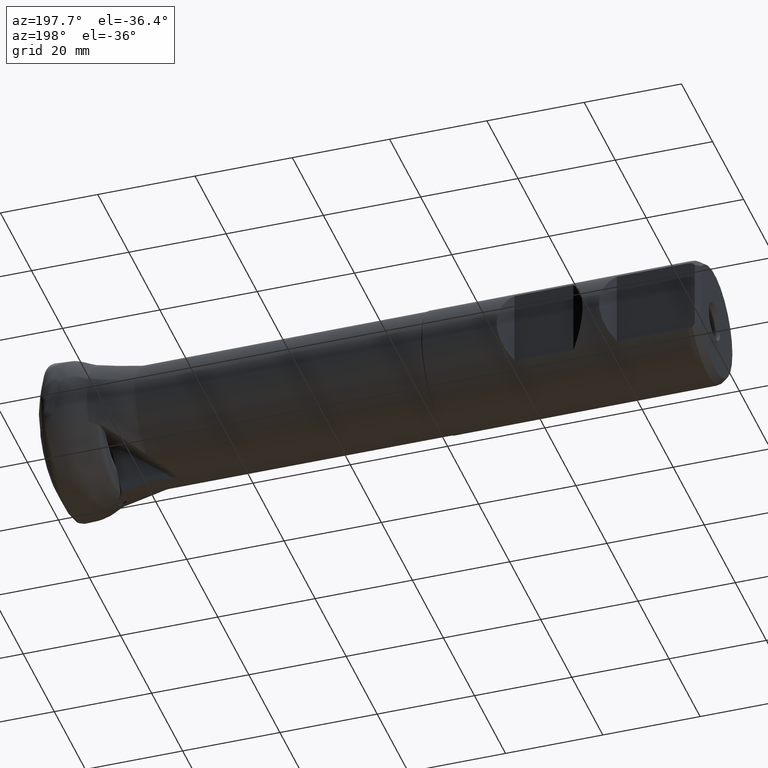
[diagram: clean part render]
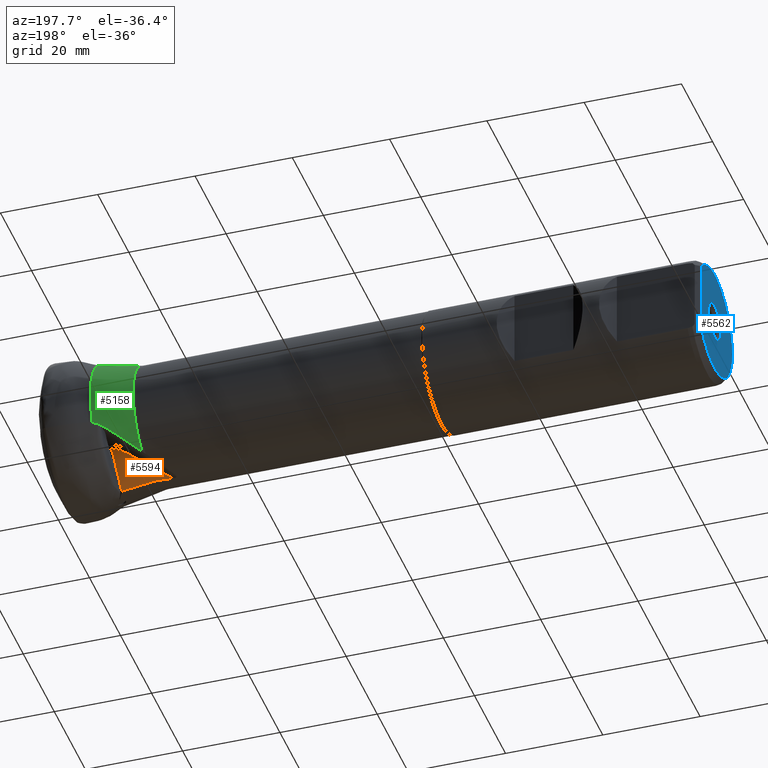
[diagram: same view with three faces highlighted in distinct colors, each labeled with its STEP entity id]
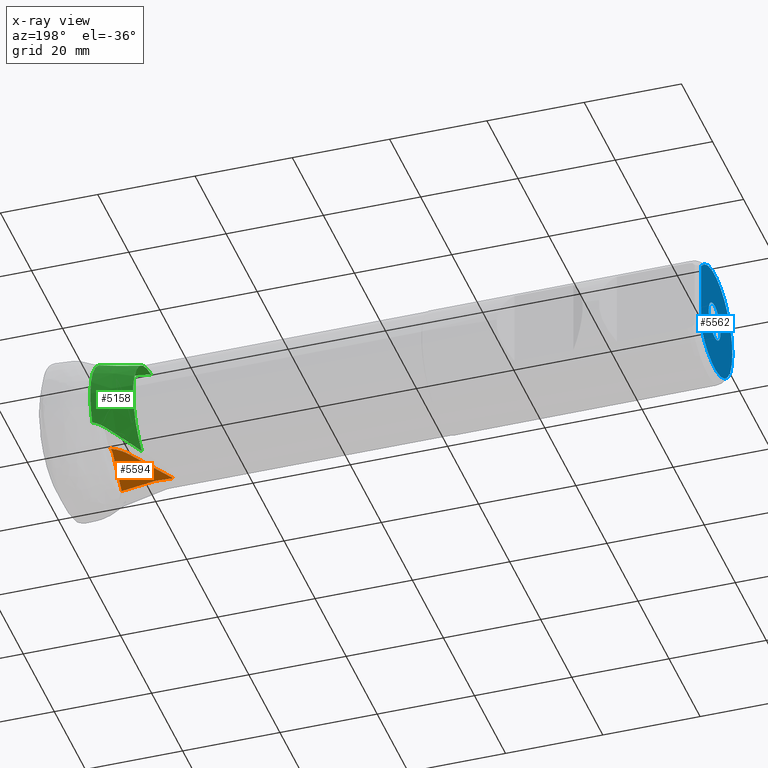
[diagram: x-ray of the same camera — body ghosted, the three highlighted faces saturated]
A machine part, auxiliary view with three faces highlighted in distinct colors.
The next image is the same camera in x-ray (body ghosted, the three faces saturated) — at least one of them is partly hidden behind the body in this view.
Their STEP definitions:

[orange] entity #5594 — the highlighted planar face has unit normal (0.0698, -0.9976, -0).
#6 = VECTOR ( 'NONE', #5737, 1000.000000000000100 ) ;
#47 = VERTEX_POINT ( 'NONE', #4092 ) ;
#92 = CARTESIAN_POINT ( 'NONE',  ( -19.32556363557012700, -0.8100564290826681700, -12.42721098533912300 ) ) ;
#175 = CARTESIAN_POINT ( 'NONE',  ( -12.89099991687611900, -0.3601079019870963600, -13.68158724386874100 ) ) ;
#250 = VERTEX_POINT ( 'NONE', #5867 ) ;
#269 = ORIENTED_EDGE ( 'NONE', *, *, #2137, .T. ) ;
#312 = CARTESIAN_POINT ( 'NONE',  ( -10.90151207211342800, -0.2209893596025763700, -3.525788506390191900 ) ) ;
#318 = EDGE_CURVE ( 'NONE', #47, #4785, #5747, .T. ) ;
#331 = CARTESIAN_POINT ( 'NONE',  ( -11.01047874311841600, -0.2286090515140483700, -3.932837802598441600 ) ) ;
#438 = EDGE_CURVE ( 'Kante170', #1354, #47, #3517, .T. ) ;
#461 = ORIENTED_EDGE ( 'NONE', *, *, #3964, .T. ) ;
#485 = DIRECTION ( 'NONE',  ( 0.7672847685016596100, 0.05365377771412029700, 0.6390581790121759900 ) ) ;
#532 = CARTESIAN_POINT ( 'NONE',  ( -14.21418649353804900, -0.4526341208995583500, -4.831704292310372600 ) ) ;
#537 = CARTESIAN_POINT ( 'NONE',  ( -23.24405145381696900, -1.084063789852097900, -12.35252224039816000 ) ) ;
#544 = CARTESIAN_POINT ( 'NONE',  ( -19.89004134527376900, -0.8495285557354106400, -12.37086501555124900 ) ) ;
#716 = CARTESIAN_POINT ( 'NONE',  ( -19.89004134527376900, -0.8495285557354106400, -12.37086501555124900 ) ) ;
#823 =( BOUNDED_CURVE ( )  B_SPLINE_CURVE ( 3, ( #544, #5046, #3806, #537 ),
 .UNSPECIFIED., .F., .F. ) 
 B_SPLINE_CURVE_WITH_KNOTS ( ( 4, 4 ),
 ( 1.639360401890296300, 1.658332575621686200 ),
 .UNSPECIFIED. ) 
 CURVE ( )  GEOMETRIC_REPRESENTATION_ITEM ( )  RATIONAL_B_SPLINE_CURVE ( ( 1.000000000000000000, 0.9999700049435873400, 0.9999700049435873400, 1.000000000000000000 ) ) 
 REPRESENTATION_ITEM ( '' )  );
#944 = EDGE_CURVE ( 'NONE', #4394, #4197, #823, .T. ) ;
#1016 = CIRCLE ( 'NONE', #4374, 2.000000000000000000 ) ;
#1098 = B_SPLINE_CURVE_WITH_KNOTS ( 'NONE', 3,
 ( #5850, #4901, #4774, #4764 ),
 .UNSPECIFIED., .F., .F.,
 ( 4, 4 ),
 ( 2.033974575460028900E-007, 0.0005688579515112119200 ),
 .UNSPECIFIED. ) ;
#1175 = ORIENTED_EDGE ( 'NONE', *, *, #5417, .F. ) ;
#1354 = VERTEX_POINT ( 'NONE', #4524 ) ;
#1360 = CIRCLE ( 'NONE', #5483, 2.537315167658678500 ) ;
#1428 = ORIENTED_EDGE ( 'NONE', *, *, #3919, .F. ) ;
#1568 = VERTEX_POINT ( 'NONE', #3716 ) ;
#1722 = CARTESIAN_POINT ( 'NONE',  ( -10.57702715092633900, -0.1982991635402307200, -2.968245395317670600 ) ) ;
#1751 = CARTESIAN_POINT ( 'NONE',  ( -10.71555031785873500, -0.2079856469841288000, -3.136336569409002200 ) ) ;
#1767 = CARTESIAN_POINT ( 'NONE',  ( -10.82384640674604100, -0.2155584472259664800, -3.322105642711543600 ) ) ;
#1771 = CARTESIAN_POINT ( 'NONE',  ( -10.90151207211342800, -0.2209893596025763700, -3.525788506390191900 ) ) ;
#1904 = ORIENTED_EDGE ( 'NONE', *, *, #944, .T. ) ;
#1950 = ORIENTED_EDGE ( 'NONE', *, *, #4157, .F. ) ;
#2022 = CARTESIAN_POINT ( 'NONE',  ( -8.254575881938473400, -0.03589755040571569700, -12.02209491825100300 ) ) ;
#2023 = DIRECTION ( 'NONE',  ( -0.06975647374411164700, 0.9975640502598252000, 7.210798256239436800E-015 ) ) ;
#2033 = DIRECTION ( 'NONE',  ( 0.9975640502598250900, 0.06975647374411166100, 0.0000000000000000000 ) ) ;
#2067 = B_SPLINE_CURVE_WITH_KNOTS ( 'NONE', 3,
 ( #4038, #4726, #4009, #4002 ),
 .UNSPECIFIED., .F., .F.,
 ( 4, 4 ),
 ( 0.003292442716863826100, 0.005574800758643602300 ),
 .UNSPECIFIED. ) ;
#2137 = EDGE_CURVE ( 'Kante167', #4008, #2699, #2154, .T. ) ;
#2154 = B_SPLINE_CURVE_WITH_KNOTS ( 'NONE', 3,
 ( #175, #4245, #4741, #92 ),
 .UNSPECIFIED., .F., .F.,
 ( 4, 4 ),
 ( 0.001900804661724748000, 0.008471916973087368800 ),
 .UNSPECIFIED. ) ;
#2270 = AXIS2_PLACEMENT_3D ( 'NONE', #2022, #2023, #2033 ) ;
#2377 = VERTEX_POINT ( 'NONE', #2949 ) ;
#2511 = CARTESIAN_POINT ( 'NONE',  ( -23.24405145381696900, -1.084063789852097900, -12.35252224039816000 ) ) ;
#2646 = FACE_OUTER_BOUND ( 'NONE', #5822, .T. ) ;
#2699 = VERTEX_POINT ( 'NONE', #4091 ) ;
#2706 = EDGE_CURVE ( 'NONE', #2377, #4145, #2067, .T. ) ;
#2762 = ORIENTED_EDGE ( 'NONE', *, *, #4143, .F. ) ;
#2934 = ORIENTED_EDGE ( 'NONE', *, *, #438, .T. ) ;
#2949 = CARTESIAN_POINT ( 'NONE',  ( -11.76427051649231000, -0.2813193070952883500, -7.720447398120994000 ) ) ;
#2956 = DIRECTION ( 'NONE',  ( 0.1857083024379776500, 0.01298598954091936300, 0.9825191043848702200 ) ) ;
#2969 = CARTESIAN_POINT ( 'NONE',  ( -14.56317029812016500, -0.4770374457737686100, -22.52846874453569000 ) ) ;
#3020 = LINE ( 'NONE', #5877, #6 ) ;
#3027 = CARTESIAN_POINT ( 'NONE',  ( -12.19087029176117700, -0.3111500693555760400, -9.977440885355719000 ) ) ;
#3049 = CARTESIAN_POINT ( 'NONE',  ( -14.56317029812016500, -0.4770374457737686100, -22.52846874453569000 ) ) ;
#3062 = ORIENTED_EDGE ( 'NONE', *, *, #4456, .T. ) ;
#3069 = DIRECTION ( 'NONE',  ( 0.1857083024379776500, 0.01298598954091936300, 0.9825191043848702200 ) ) ;
#3076 = LINE ( 'NONE', #2969, #5349 ) ;
#3152 = EDGE_CURVE ( 'NONE', #250, #4462, #1360, .T. ) ;
#3381 = AXIS2_PLACEMENT_3D ( 'NONE', #3634, #3677, #3613 ) ;
#3483 = ORIENTED_EDGE ( 'NONE', *, *, #2706, .T. ) ;
#3517 = CIRCLE ( 'NONE', #2270, 9.348387313579394200 ) ;
#3607 = ORIENTED_EDGE ( 'NONE', *, *, #3152, .F. ) ;
#3613 = DIRECTION ( 'NONE',  ( 0.9975640502598252000, 0.06975647374411164700, 0.0000000000000000000 ) ) ;
#3634 = CARTESIAN_POINT ( 'NONE',  ( -8.254575881938473400, -0.03589755040571580800, -12.02209491825100300 ) ) ;
#3651 = PLANE ( 'NONE',  #3381 ) ;
#3677 = DIRECTION ( 'NONE',  ( 0.06975647374411164700, -0.9975640502598252000, -7.210798256239435200E-015 ) ) ;
#3716 = CARTESIAN_POINT ( 'NONE',  ( -10.99813899558734900, -0.2277461723090135300, -3.867552419374336900 ) ) ;
#3806 = CARTESIAN_POINT ( 'NONE',  ( -22.12689430869767200, -1.005944552254007100, -12.35937802540488100 ) ) ;
#3862 = ORIENTED_EDGE ( 'NONE', *, *, #318, .T. ) ;
#3919 = EDGE_CURVE ( 'NONE', #4462, #1568, #3020, .T. ) ;
#3964 = EDGE_CURVE ( 'NONE', #2699, #4394, #1098, .T. ) ;
#3999 = DIRECTION ( 'NONE',  ( -0.9975640502598253100, -0.06975647374411164700, 0.0000000000000000000 ) ) ;
#4002 = CARTESIAN_POINT ( 'NONE',  ( -12.19087029176117700, -0.3111500693555760400, -9.977440885355719000 ) ) ;
#4008 = VERTEX_POINT ( 'NONE', #4739 ) ;
#4009 = CARTESIAN_POINT ( 'NONE',  ( -12.13498704560710800, -0.3072423321111190700, -9.198267996185203200 ) ) ;
#4038 = CARTESIAN_POINT ( 'NONE',  ( -11.76427051649231000, -0.2813193070952883500, -7.720447398120994000 ) ) ;
#4089 = LINE ( 'NONE', #532, #4728 ) ;
#4091 = CARTESIAN_POINT ( 'NONE',  ( -19.32556363557012700, -0.8100564290826681700, -12.42721098533912300 ) ) ;
#4092 = CARTESIAN_POINT ( 'NONE',  ( -10.57702715092633900, -0.1982991635402307200, -2.968245395317670600 ) ) ;
#4143 = EDGE_CURVE ( 'NONE', #2377, #250, #3076, .T. ) ;
#4145 = VERTEX_POINT ( 'NONE', #3027 ) ;
#4157 = EDGE_CURVE ( 'NONE', #4008, #4145, #5932, .T. ) ;
#4195 = DIRECTION ( 'NONE',  ( -0.06975647374411164700, 0.9975640502598252000, 7.210798256239436800E-015 ) ) ;
#4197 = VERTEX_POINT ( 'NONE', #2511 ) ;
#4245 = CARTESIAN_POINT ( 'NONE',  ( -15.03643699928834600, -0.5101314773855435400, -13.26647086254141600 ) ) ;
#4374 = AXIS2_PLACEMENT_3D ( 'NONE', #4686, #4680, #4671 ) ;
#4394 = VERTEX_POINT ( 'NONE', #716 ) ;
#4456 = EDGE_CURVE ( 'NONE', #4197, #1354, #4089, .T. ) ;
#4462 = VERTEX_POINT ( 'NONE', #331 ) ;
#4524 = CARTESIAN_POINT ( 'NONE',  ( -14.21418649353805100, -0.4526341208995584600, -4.831704292310371700 ) ) ;
#4666 = CARTESIAN_POINT ( 'NONE',  ( -8.640678803736765400, -0.06289649680919036400, -4.824216429530172200 ) ) ;
#4671 = DIRECTION ( 'NONE',  ( 0.9975640502598252000, 0.06975647374411163300, 0.0000000000000000000 ) ) ;
#4680 = DIRECTION ( 'NONE',  ( -0.06975647374411164700, 0.9975640502598253100, 7.211950221047702700E-015 ) ) ;
#4686 = CARTESIAN_POINT ( 'NONE',  ( -9.037887521131695600, -0.09067203609278823300, -4.239875985745052300 ) ) ;
#4726 = CARTESIAN_POINT ( 'NONE',  ( -11.99087181320692600, -0.2971648133567986200, -8.446532433096022500 ) ) ;
#4728 = VECTOR ( 'NONE', #485, 1000.000000000000100 ) ;
#4739 = CARTESIAN_POINT ( 'NONE',  ( -12.89099991687611900, -0.3601079019870963600, -13.68158724386874100 ) ) ;
#4741 = CARTESIAN_POINT ( 'NONE',  ( -17.18135000374868300, -0.6601184056836051400, -12.84864727982190400 ) ) ;
#4764 = CARTESIAN_POINT ( 'NONE',  ( -19.89004134527376900, -0.8495285557354106400, -12.37086501555124900 ) ) ;
#4774 = CARTESIAN_POINT ( 'NONE',  ( -19.70010700783398100, -0.8362470530396461900, -12.37177707916058000 ) ) ;
#4785 = VERTEX_POINT ( 'NONE', #312 ) ;
#4901 = CARTESIAN_POINT ( 'NONE',  ( -19.51194961152392400, -0.8230898061720946000, -12.39057759495069000 ) ) ;
#5046 = CARTESIAN_POINT ( 'NONE',  ( -21.00885740360323000, -0.9277637958455793300, -12.36549246719227400 ) ) ;
#5298 = VECTOR ( 'NONE', #3069, 1000.000000000000100 ) ;
#5349 = VECTOR ( 'NONE', #2956, 1000.000000000000100 ) ;
#5417 = EDGE_CURVE ( 'NONE', #1568, #4785, #1016, .T. ) ;
#5483 = AXIS2_PLACEMENT_3D ( 'NONE', #4666, #4195, #3999 ) ;
#5594 = ADVANCED_FACE ( 'NONE', ( #2646 ), #3651, .F. ) ;
#5737 = DIRECTION ( 'NONE',  ( 0.1857083024379778100, 0.01298598954091938000, 0.9825191043848702200 ) ) ;
#5747 = B_SPLINE_CURVE_WITH_KNOTS ( 'NONE', 3,
 ( #1722, #1751, #1767, #1771 ),
 .UNSPECIFIED., .F., .F.,
 ( 4, 4 ),
 ( 0.0000000000000000000, 0.0006454917735955783200 ),
 .UNSPECIFIED. ) ;
#5822 = EDGE_LOOP ( 'NONE', ( #2762, #3483, #1950, #269, #461, #1904, #3062, #2934, #3862, #1175, #1428, #3607 ) ) ;
#5850 = CARTESIAN_POINT ( 'NONE',  ( -19.32556363557012700, -0.8100564290826681700, -12.42721098533912300 ) ) ;
#5867 = CARTESIAN_POINT ( 'NONE',  ( -11.12756670301757600, -0.2367966392667611200, -4.351865313415579800 ) ) ;
#5877 = CARTESIAN_POINT ( 'NONE',  ( -10.99813899558734900, -0.2277461723090135300, -3.867552419374336900 ) ) ;
#5932 = LINE ( 'NONE', #3049, #5298 ) ;

[blue] entity #5562 — the highlighted planar face has unit normal (-1, 0, 0).
#262 = DIRECTION ( 'NONE',  ( 0.0000000000000000000, 0.0000000000000000000, -1.000000000000000000 ) ) ;
#277 = DIRECTION ( 'NONE',  ( 1.000000000000000000, -0.0000000000000000000, -0.0000000000000000000 ) ) ;
#296 = CARTESIAN_POINT ( 'NONE',  ( -134.9052591770394500, 0.0000000000000000000, 0.0000000000000000000 ) ) ;
#396 = CIRCLE ( 'NONE', #1962, 3.827350269189602200 ) ;
#597 = CARTESIAN_POINT ( 'NONE',  ( -134.9052591770394500, 8.700000000000009900, 7.366817494685165900 ) ) ;
#762 = CARTESIAN_POINT ( 'NONE',  ( -134.9052591770394500, 3.827350269189602200, 0.0000000000000000000 ) ) ;
#951 = AXIS2_PLACEMENT_3D ( 'NONE', #3726, #3983, #3665 ) ;
#1941 = EDGE_LOOP ( 'NONE', ( #2025, #3985 ) ) ;
#1962 = AXIS2_PLACEMENT_3D ( 'NONE', #4677, #4651, #4626 ) ;
#1980 = CARTESIAN_POINT ( 'NONE',  ( -134.9052591770394500, 8.700000000000009900, 0.0000000000000000000 ) ) ;
#1990 = DIRECTION ( 'NONE',  ( 0.0000000000000000000, 0.0000000000000000000, 1.000000000000000000 ) ) ;
#2025 = ORIENTED_EDGE ( 'NONE', *, *, #4289, .F. ) ;
#2468 = VERTEX_POINT ( 'NONE', #597 ) ;
#2645 = EDGE_CURVE ( 'NONE', #4553, #4553, #396, .T. ) ;
#2659 = CARTESIAN_POINT ( 'NONE',  ( -134.9052591770394500, 8.700000000000009900, -7.366817494685166800 ) ) ;
#2725 = VECTOR ( 'NONE', #1990, 1000.000000000000000 ) ;
#3001 = ORIENTED_EDGE ( 'NONE', *, *, #2645, .T. ) ;
#3131 = FACE_OUTER_BOUND ( 'NONE', #1941, .T. ) ;
#3665 = DIRECTION ( 'NONE',  ( 0.0000000000000000000, 0.0000000000000000000, 1.000000000000000000 ) ) ;
#3687 = PLANE ( 'NONE',  #951 ) ;
#3726 = CARTESIAN_POINT ( 'NONE',  ( -134.9052591770394500, -1.653949908591775700E-014, 0.0000000000000000000 ) ) ;
#3983 = DIRECTION ( 'NONE',  ( -1.000000000000000000, 0.0000000000000000000, 0.0000000000000000000 ) ) ;
#3985 = ORIENTED_EDGE ( 'NONE', *, *, #4461, .F. ) ;
#4003 = AXIS2_PLACEMENT_3D ( 'NONE', #296, #277, #262 ) ;
#4215 = CIRCLE ( 'NONE', #4003, 11.39999999999998300 ) ;
#4289 = EDGE_CURVE ( 'Kante184', #5683, #2468, #4847, .T. ) ;
#4461 = EDGE_CURVE ( 'Kante186', #2468, #5683, #4215, .T. ) ;
#4553 = VERTEX_POINT ( 'NONE', #762 ) ;
#4626 = DIRECTION ( 'NONE',  ( 0.0000000000000000000, 1.000000000000000000, 0.0000000000000000000 ) ) ;
#4651 = DIRECTION ( 'NONE',  ( 1.000000000000000000, -3.134654851948420700E-033, -0.0000000000000000000 ) ) ;
#4677 = CARTESIAN_POINT ( 'NONE',  ( -134.9052591770394500, -1.536601818475494200E-031, 0.0000000000000000000 ) ) ;
#4847 = LINE ( 'NONE', #1980, #2725 ) ;
#4859 = EDGE_LOOP ( 'NONE', ( #3001 ) ) ;
#5110 = FACE_BOUND ( 'NONE', #4859, .T. ) ;
#5562 = ADVANCED_FACE ( 'NONE', ( #3131, #5110 ), #3687, .T. ) ;
#5683 = VERTEX_POINT ( 'NONE', #2659 ) ;

[green] entity #5158 — the highlighted conical surface has half-angle 10.845 deg.
#190 = CARTESIAN_POINT ( 'NONE',  ( -12.45613410986680900, 1.332141020560870400, 13.70504729325338300 ) ) ;
#208 = CARTESIAN_POINT ( 'NONE',  ( -12.56890336999146200, 1.221187558967546300, 13.69412576938038000 ) ) ;
#223 = CARTESIAN_POINT ( 'NONE',  ( -12.18333096745414700, 1.933032816898221600, 13.69915040932523500 ) ) ;
#231 = CARTESIAN_POINT ( 'NONE',  ( -12.89099991687611900, 0.3601079019870963600, 13.68158724386874100 ) ) ;
#274 = CARTESIAN_POINT ( 'NONE',  ( -12.83264201964154000, 0.6535580663402798000, 13.68281899243309300 ) ) ;
#282 = CARTESIAN_POINT ( 'NONE',  ( -12.84435909463577000, 0.4954418570034891400, 13.68629653410403300 ) ) ;
#290 = CARTESIAN_POINT ( 'NONE',  ( -11.61871782507151900, 3.128100680945735200, 13.57430880262749200 ) ) ;
#294 = ORIENTED_EDGE ( 'NONE', *, *, #4964, .F. ) ;
#334 = B_SPLINE_CURVE_WITH_KNOTS ( 'NONE', 3,
 ( #2400, #2436, #2001, #1966, #1925, #1902, #1886, #1876, #1854, #1834, #1814, #1794, #1772, #1750, #1729, #1711 ),
 .UNSPECIFIED., .F., .F.,
 ( 4, 2, 2, 2, 2, 2, 2, 4 ),
 ( 0.0007991746535138608000, 0.001210006896252155000, 0.001620839138990449100, 0.002442503624467033200, 0.002853335867205325200, 0.003264168109943616700, 0.003675000352681908300, 0.004085832595420199400 ),
 .UNSPECIFIED. ) ;
#454 = VERTEX_POINT ( 'NONE', #2006 ) ;
#538 = EDGE_CURVE ( 'NONE', #4491, #1350, #5048, .T. ) ;
#578 = EDGE_CURVE ( 'NONE', #4491, #1589, #4419, .T. ) ;
#665 = CARTESIAN_POINT ( 'NONE',  ( -12.89099991687611900, 0.3601079019870963600, 13.68158724386874100 ) ) ;
#668 = CARTESIAN_POINT ( 'NONE',  ( -12.67995389040320800, 12.14865028361488300, -6.391648894483778600 ) ) ;
#673 = CARTESIAN_POINT ( 'NONE',  ( -12.86168660798711200, 0.4265649338345055600, 13.68533530213832700 ) ) ;
#683 = CARTESIAN_POINT ( 'NONE',  ( -12.84699154354206600, 0.4598034669791042400, 13.68703556957242600 ) ) ;
#698 = CARTESIAN_POINT ( 'NONE',  ( -19.32556363557012700, 6.787161694477396700, -10.44156120632590900 ) ) ;
#752 = CARTESIAN_POINT ( 'NONE',  ( -19.32556363557012700, 0.8100564290826681700, 12.42721098533912300 ) ) ;
#773 = CARTESIAN_POINT ( 'NONE',  ( -17.18134999652359000, 0.6601184051783770500, 12.84864728124196500 ) ) ;
#818 = ORIENTED_EDGE ( 'NONE', *, *, #3104, .T. ) ;
#834 = CARTESIAN_POINT ( 'NONE',  ( -12.89099991687611900, 0.3601079019870963600, 13.68158724386874100 ) ) ;
#919 = CARTESIAN_POINT ( 'NONE',  ( -17.69207303484444800, 8.667618504329924500, -9.592486571145526500 ) ) ;
#930 = CARTESIAN_POINT ( 'NONE',  ( -19.32556363557012700, 0.0000000000000000000, 0.0000000000000000000 ) ) ;
#932 = DIRECTION ( 'NONE',  ( 1.000000000000000000, -0.0000000000000000000, -0.0000000000000000000 ) ) ;
#950 = DIRECTION ( 'NONE',  ( 0.0000000000000000000, 0.0000000000000000000, -1.000000000000000000 ) ) ;
#960 = CARTESIAN_POINT ( 'NONE',  ( -15.69051209583768100, 10.34482267446805400, -8.370545850244912600 ) ) ;
#985 = FACE_OUTER_BOUND ( 'NONE', #3678, .T. ) ;
#988 = CARTESIAN_POINT ( 'NONE',  ( -19.32556363557012700, 6.787161694477396700, -10.44156120632590900 ) ) ;
#1000 = CARTESIAN_POINT ( 'NONE',  ( -13.40527637212814800, 11.74805511178591500, -6.827262013307659100 ) ) ;
#1133 = AXIS2_PLACEMENT_3D ( 'NONE', #5918, #5885, #5917 ) ;
#1187 = VERTEX_POINT ( 'NONE', #231 ) ;
#1220 = CARTESIAN_POINT ( 'NONE',  ( -12.45613410986680900, 1.332141020560870400, 13.70504729325338300 ) ) ;
#1252 =( BOUNDED_CURVE ( )  B_SPLINE_CURVE ( 3, ( #3713, #5820, #4410, #4445 ),
 .UNSPECIFIED., .F., .F. ) 
 B_SPLINE_CURVE_WITH_KNOTS ( ( 4, 4 ),
 ( 2.767099512888700800, 2.769610021100674200 ),
 .UNSPECIFIED. ) 
 CURVE ( )  GEOMETRIC_REPRESENTATION_ITEM ( )  RATIONAL_B_SPLINE_CURVE ( ( 1.000000000000000000, 0.9999994747791121100, 0.9999994747791121100, 1.000000000000000000 ) ) 
 REPRESENTATION_ITEM ( '' )  );
#1301 = VERTEX_POINT ( 'NONE', #290 ) ;
#1315 = CARTESIAN_POINT ( 'NONE',  ( -12.45613410986680900, 1.332141020560870400, 13.70504729325338300 ) ) ;
#1318 = CARTESIAN_POINT ( 'NONE',  ( -15.03643699271818500, 0.5101314769261130500, 13.26647086381266200 ) ) ;
#1350 = VERTEX_POINT ( 'NONE', #4281 ) ;
#1384 = CARTESIAN_POINT ( 'NONE',  ( -11.02925917703945500, 12.79861067441098200, -5.779395626261730500 ) ) ;
#1567 = CARTESIAN_POINT ( 'NONE',  ( -13.05387708437949200, 11.95480769069662900, -6.600295948096644800 ) ) ;
#1589 = VERTEX_POINT ( 'NONE', #4492 ) ;
#1634 = EDGE_CURVE ( 'NONE', #3700, #3453, #1252, .T. ) ;
#1653 = CARTESIAN_POINT ( 'NONE',  ( -11.61871782507151900, 3.128100680945735200, 13.57430880262749200 ) ) ;
#1663 = CARTESIAN_POINT ( 'NONE',  ( -11.65551045496850700, 3.372523609063518900, 13.51074980527485500 ) ) ;
#1683 = CARTESIAN_POINT ( 'NONE',  ( -11.72448605640247100, 3.855970498631011300, 13.36466385005026700 ) ) ;
#1689 = CARTESIAN_POINT ( 'NONE',  ( -11.69077448769910500, 3.615201630161860800, 13.44085238544985600 ) ) ;
#1693 = EDGE_CURVE ( 'NONE', #454, #5036, #4265, .T. ) ;
#1708 = EDGE_CURVE ( 'NONE', #1187, #3453, #1868, .T. ) ;
#1711 = CARTESIAN_POINT ( 'NONE',  ( -11.02925917703947800, 5.760464015571924000, 12.80714266826526800 ) ) ;
#1729 = CARTESIAN_POINT ( 'NONE',  ( -11.15284432077057100, 5.804089934160669100, 12.76155905687825900 ) ) ;
#1750 = CARTESIAN_POINT ( 'NONE',  ( -11.28786443042187300, 5.820760581350419300, 12.72539041503917900 ) ) ;
#1772 = CARTESIAN_POINT ( 'NONE',  ( -11.55707066959855900, 5.797353579835295500, 12.67938270581019100 ) ) ;
#1794 = CARTESIAN_POINT ( 'NONE',  ( -11.69241055549228700, 5.756689741679956300, 12.66956082630969500 ) ) ;
#1814 = CARTESIAN_POINT ( 'NONE',  ( -11.93425015969771500, 5.629634269328683200, 12.67584741099212500 ) ) ;
#1834 = CARTESIAN_POINT ( 'NONE',  ( -12.04374141367470800, 5.541993209497131400, 12.69180577270944700 ) ) ;
#1854 = CARTESIAN_POINT ( 'NONE',  ( -12.22003834502696800, 5.338741713531535800, 12.74202179998643700 ) ) ;
#1868 =( BOUNDED_CURVE ( )  B_SPLINE_CURVE ( 3, ( #665, #5984, #673, #683 ),
 .UNSPECIFIED., .F., .F. ) 
 B_SPLINE_CURVE_WITH_KNOTS ( ( 4, 4 ),
 ( 4.245311037378050000, 4.252302622021333400 ),
 .UNSPECIFIED. ) 
 CURVE ( )  GEOMETRIC_REPRESENTATION_ITEM ( )  RATIONAL_B_SPLINE_CURVE ( ( 1.000000000000000000, 0.9999959264828295300, 0.9999959264828295300, 1.000000000000000000 ) ) 
 REPRESENTATION_ITEM ( '' )  );
#1876 = CARTESIAN_POINT ( 'NONE',  ( -12.28883719707392100, 5.221356548987545300, 12.77657326314242600 ) ) ;
#1886 = CARTESIAN_POINT ( 'NONE',  ( -12.42266830427820400, 4.850775564743084800, 12.89638039453810900 ) ) ;
#1902 = CARTESIAN_POINT ( 'NONE',  ( -12.41499484774846200, 4.575684184903960400, 12.99796450079023900 ) ) ;
#1925 = CARTESIAN_POINT ( 'NONE',  ( -12.24891362570656400, 4.225692566706034500, 13.14752064669827400 ) ) ;
#1966 = CARTESIAN_POINT ( 'NONE',  ( -12.16915344194402400, 4.121518504424047400, 13.19628091575961000 ) ) ;
#1982 = ORIENTED_EDGE ( 'NONE', *, *, #1708, .T. ) ;
#2001 = CARTESIAN_POINT ( 'NONE',  ( -11.97107633189266600, 3.954262299965297400, 13.28695688663165900 ) ) ;
#2006 = CARTESIAN_POINT ( 'NONE',  ( -11.02925917703945500, 12.79861067441098200, -5.779395626261730500 ) ) ;
#2144 = CARTESIAN_POINT ( 'NONE',  ( -12.84435909463577000, 0.4954418570034891400, 13.68629653410403300 ) ) ;
#2269 = VERTEX_POINT ( 'NONE', #3945 ) ;
#2400 = CARTESIAN_POINT ( 'NONE',  ( -11.72448605640247100, 3.855970498631011300, 13.36466385005026700 ) ) ;
#2436 = CARTESIAN_POINT ( 'NONE',  ( -11.85197154873806400, 3.891246684008766300, 13.32906590709901500 ) ) ;
#2514 = CARTESIAN_POINT ( 'NONE',  ( -13.23318890809381500, 11.85372417212983500, -6.711046517887081300 ) ) ;
#2729 = CARTESIAN_POINT ( 'NONE',  ( -11.46885745437921300, 12.65918113405051300, -5.883527716521656200 ) ) ;
#2800 = ORIENTED_EDGE ( 'NONE', *, *, #1634, .F. ) ;
#2946 = EDGE_CURVE ( 'NONE', #2269, #5036, #334, .T. ) ;
#2962 = CARTESIAN_POINT ( 'NONE',  ( -13.40527637212814800, 11.74805511178591500, -6.827262013307659100 ) ) ;
#2977 = EDGE_CURVE ( 'NONE', #2269, #1301, #4570, .T. ) ;
#3104 = EDGE_CURVE ( 'NONE', #3700, #3708, #4032, .T. ) ;
#3256 = CARTESIAN_POINT ( 'NONE',  ( -12.84699154354206600, 0.4598034669791042400, 13.68703556957242600 ) ) ;
#3453 = VERTEX_POINT ( 'NONE', #3256 ) ;
#3514 = ORIENTED_EDGE ( 'NONE', *, *, #578, .F. ) ;
#3678 = EDGE_LOOP ( 'NONE', ( #2800, #818, #3899, #4845, #4954, #4865, #294, #3514, #5125, #5440, #1982 ) ) ;
#3700 = VERTEX_POINT ( 'NONE', #2144 ) ;
#3708 = VERTEX_POINT ( 'NONE', #1220 ) ;
#3713 = CARTESIAN_POINT ( 'NONE',  ( -12.84435909463577000, 0.4954418570034891400, 13.68629653410403300 ) ) ;
#3861 = B_SPLINE_CURVE_WITH_KNOTS ( 'NONE', 3,
 ( #834, #1318, #773, #752 ),
 .UNSPECIFIED., .F., .F.,
 ( 4, 4 ),
 ( 0.001911628657586060800, 0.008482740963261537300 ),
 .UNSPECIFIED. ) ;
#3899 = ORIENTED_EDGE ( 'NONE', *, *, #4990, .T. ) ;
#3945 = CARTESIAN_POINT ( 'NONE',  ( -11.72448605640247100, 3.855970498631011300, 13.36466385005026700 ) ) ;
#4032 = B_SPLINE_CURVE_WITH_KNOTS ( 'NONE', 3,
 ( #282, #274, #5941, #5963, #208, #190 ),
 .UNSPECIFIED., .F., .F.,
 ( 4, 2, 4 ),
 ( 1.084202172485504400E-019, 0.0004689846191887437700, 0.0009379692383774870000 ),
 .UNSPECIFIED. ) ;
#4189 = CARTESIAN_POINT ( 'NONE',  ( -11.88750792623006800, 12.50377100925290300, -6.027180828594826100 ) ) ;
#4265 = CIRCLE ( 'NONE', #1133, 14.04299999999999700 ) ;
#4281 = CARTESIAN_POINT ( 'NONE',  ( -19.32556363557012700, 0.8100564290826681700, 12.42721098533912300 ) ) ;
#4373 = EDGE_CURVE ( 'NONE', #1187, #1350, #3861, .T. ) ;
#4410 = CARTESIAN_POINT ( 'NONE',  ( -12.84611687358338700, 0.4716832289750527700, 13.68680414462408900 ) ) ;
#4419 =( BOUNDED_CURVE ( )  B_SPLINE_CURVE ( 3, ( #988, #919, #960, #1000 ),
 .UNSPECIFIED., .F., .F. ) 
 B_SPLINE_CURVE_WITH_KNOTS ( ( 4, 4 ),
 ( 3.833724541972455900, 4.245131218430408600 ),
 .UNSPECIFIED. ) 
 CURVE ( )  GEOMETRIC_REPRESENTATION_ITEM ( )  RATIONAL_B_SPLINE_CURVE ( ( 1.000000000000000000, 0.9859450438682447700, 0.9859450438682447700, 1.000000000000000000 ) ) 
 REPRESENTATION_ITEM ( '' )  );
#4445 = CARTESIAN_POINT ( 'NONE',  ( -12.84699154354206600, 0.4598034669791042400, 13.68703556957242600 ) ) ;
#4491 = VERTEX_POINT ( 'NONE', #698 ) ;
#4492 = CARTESIAN_POINT ( 'NONE',  ( -13.40527637212814800, 11.74805511178591500, -6.827262013307659100 ) ) ;
#4501 = CONICAL_SURFACE ( 'NONE', #4642, 14.04299999999999700, 0.1892875687147444200 ) ;
#4570 =( BOUNDED_CURVE ( )  B_SPLINE_CURVE ( 3, ( #1683, #1689, #1663, #1653 ),
 .UNSPECIFIED., .F., .T. ) 
 B_SPLINE_CURVE_WITH_KNOTS ( ( 4, 4 ),
 ( 3.652655049215867100, 3.704687454947443600 ),
 .UNSPECIFIED. ) 
 CURVE ( )  GEOMETRIC_REPRESENTATION_ITEM ( )  RATIONAL_B_SPLINE_CURVE ( ( 1.000000000000000000, 0.9997743984546447700, 0.9997743984546447700, 1.000000000000000000 ) ) 
 REPRESENTATION_ITEM ( '' )  );
#4642 = AXIS2_PLACEMENT_3D ( 'NONE', #5461, #5335, #5406 ) ;
#4653 = AXIS2_PLACEMENT_3D ( 'NONE', #930, #932, #950 ) ;
#4845 = ORIENTED_EDGE ( 'NONE', *, *, #2977, .F. ) ;
#4865 = ORIENTED_EDGE ( 'NONE', *, *, #1693, .F. ) ;
#4954 = ORIENTED_EDGE ( 'NONE', *, *, #2946, .T. ) ;
#4964 = EDGE_CURVE ( 'NONE', #1589, #454, #5666, .T. ) ;
#4990 = EDGE_CURVE ( 'NONE', #3708, #1301, #5540, .T. ) ;
#5036 = VERTEX_POINT ( 'NONE', #5802 ) ;
#5048 = CIRCLE ( 'NONE', #4653, 12.45358439536310700 ) ;
#5090 = CARTESIAN_POINT ( 'NONE',  ( -12.48504738997482400, 12.24146170361675900, -6.293735298369092000 ) ) ;
#5125 = ORIENTED_EDGE ( 'NONE', *, *, #538, .T. ) ;
#5158 = ADVANCED_FACE ( 'NONE', ( #985 ), #4501, .T. ) ;
#5335 = DIRECTION ( 'NONE',  ( 1.000000000000000000, -0.0000000000000000000, -0.0000000000000000000 ) ) ;
#5406 = DIRECTION ( 'NONE',  ( 0.0000000000000000000, 0.0000000000000000000, -1.000000000000000000 ) ) ;
#5440 = ORIENTED_EDGE ( 'NONE', *, *, #4373, .F. ) ;
#5461 = CARTESIAN_POINT ( 'NONE',  ( -11.02925917703945700, 0.0000000000000000000, 0.0000000000000000000 ) ) ;
#5540 =( BOUNDED_CURVE ( )  B_SPLINE_CURVE ( 3, ( #1315, #223, #5912, #5894 ),
 .UNSPECIFIED., .F., .F. ) 
 B_SPLINE_CURVE_WITH_KNOTS ( ( 4, 4 ),
 ( 4.313403113203618100, 4.439529772579417600 ),
 .UNSPECIFIED. ) 
 CURVE ( )  GEOMETRIC_REPRESENTATION_ITEM ( )  RATIONAL_B_SPLINE_CURVE ( ( 1.000000000000000000, 0.9986747781023805900, 0.9986747781023805900, 1.000000000000000000 ) ) 
 REPRESENTATION_ITEM ( '' )  );
#5666 = B_SPLINE_CURVE_WITH_KNOTS ( 'NONE', 3,
 ( #2962, #2514, #1567, #668, #5090, #4189, #2729, #1384 ),
 .UNSPECIFIED., .F., .F.,
 ( 4, 2, 2, 4 ),
 ( 0.001854466259670869600, 0.002552476317175856000, 0.003250486374680842700, 0.004646506489690817300 ),
 .UNSPECIFIED. ) ;
#5802 = CARTESIAN_POINT ( 'NONE',  ( -11.02925917703947800, 5.760464015571924000, 12.80714266826526800 ) ) ;
#5820 = CARTESIAN_POINT ( 'NONE',  ( -12.84523939015375000, 0.4835626985558612000, 13.68655779933857300 ) ) ;
#5885 = DIRECTION ( 'NONE',  ( 1.000000000000000000, -0.0000000000000000000, -0.0000000000000000000 ) ) ;
#5894 = CARTESIAN_POINT ( 'NONE',  ( -11.61871782507151900, 3.128100680945735200, 13.57430880262749200 ) ) ;
#5912 = CARTESIAN_POINT ( 'NONE',  ( -11.90382179417870700, 2.532480438140655800, 13.65551308330994800 ) ) ;
#5917 = DIRECTION ( 'NONE',  ( 0.0000000000000000000, 0.0000000000000000000, -1.000000000000000000 ) ) ;
#5918 = CARTESIAN_POINT ( 'NONE',  ( -11.02925917703945700, 0.0000000000000000000, 0.0000000000000000000 ) ) ;
#5941 = CARTESIAN_POINT ( 'NONE',  ( -12.79277196986690200, 0.8059744644325010900, 13.68216871123295200 ) ) ;
#5963 = CARTESIAN_POINT ( 'NONE',  ( -12.65968949744193800, 1.092421151764781700, 13.68785800798146800 ) ) ;
#5984 = CARTESIAN_POINT ( 'NONE',  ( -12.87635612552166000, 0.3933329434660874400, 13.68351918617245600 ) ) ;